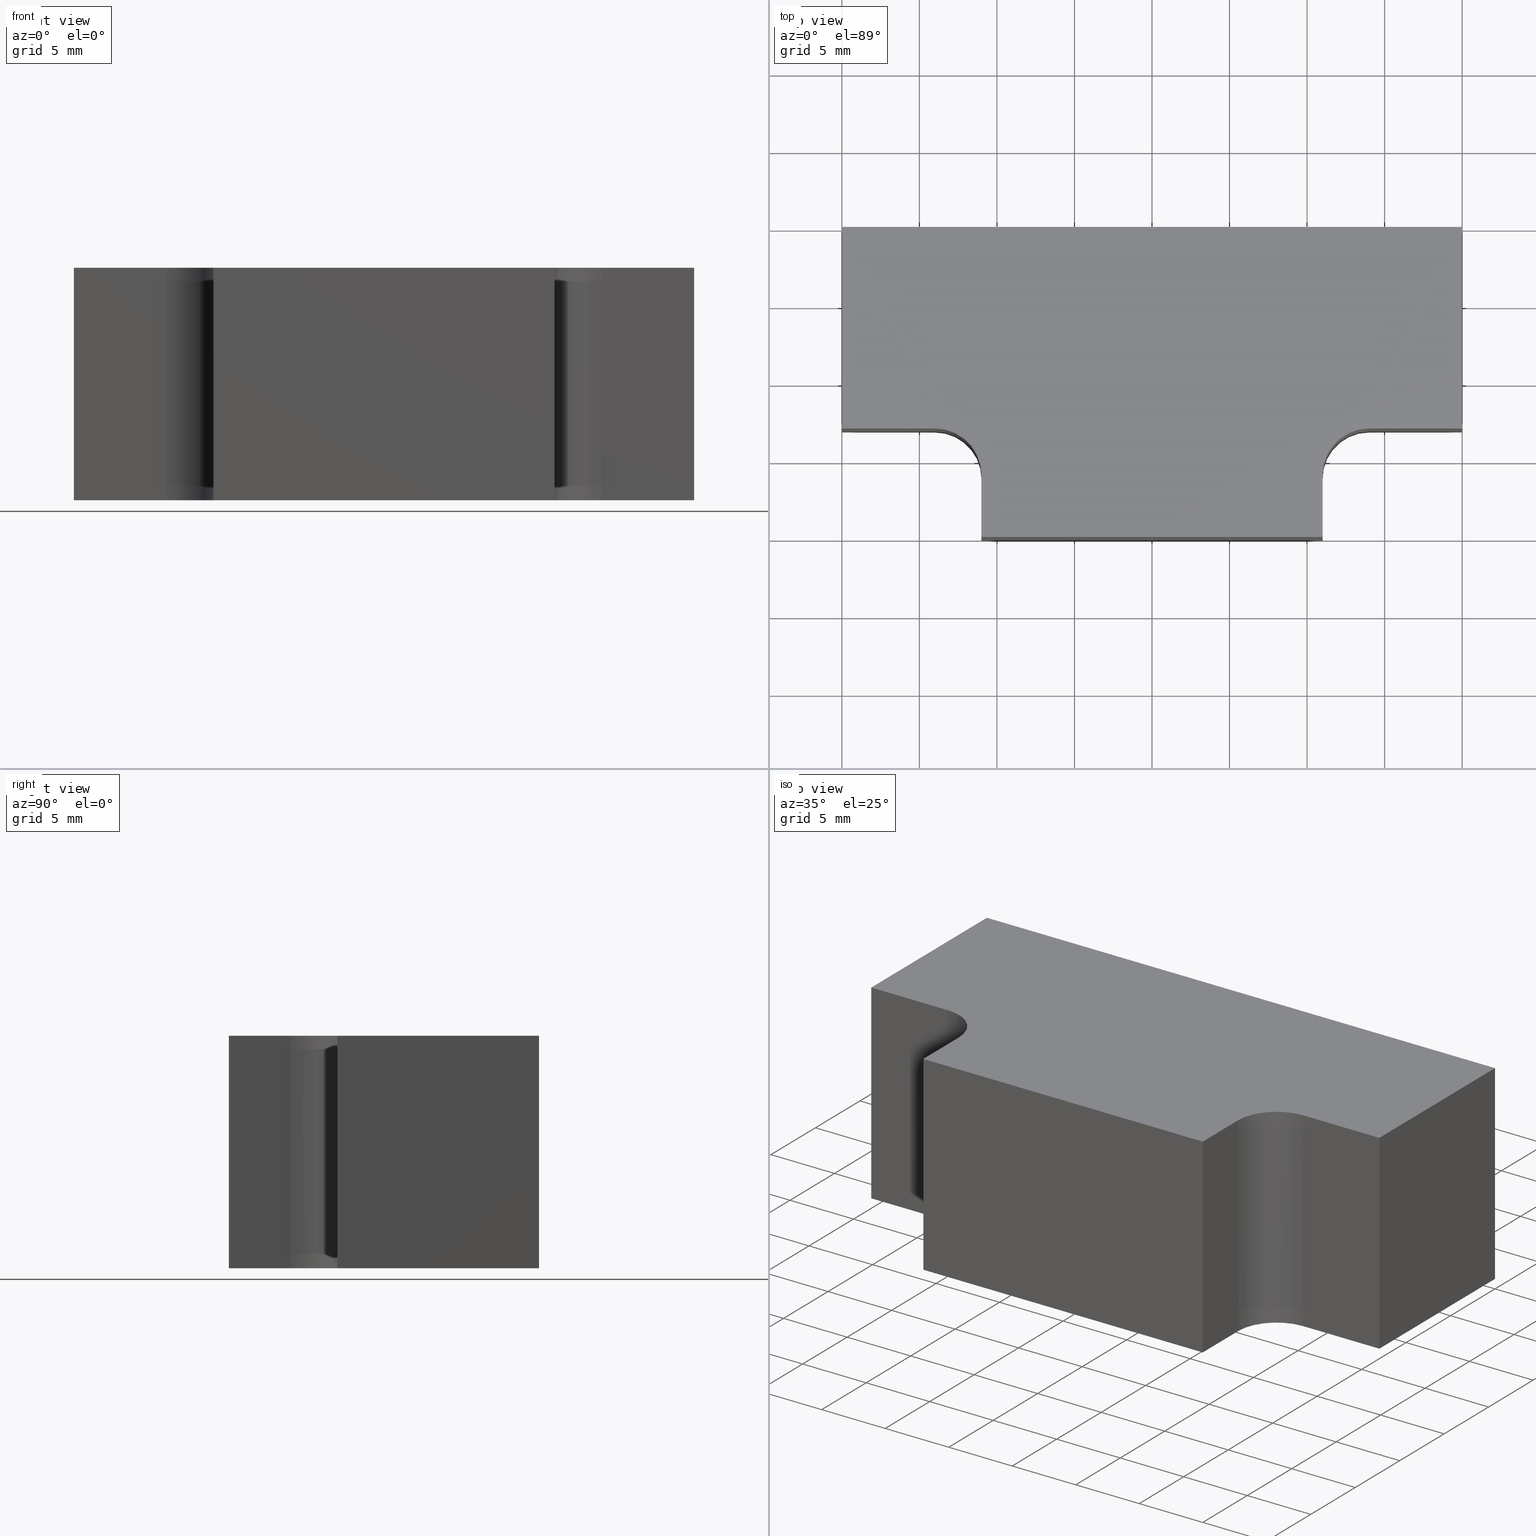
[diagram: canonical four-view strip — front | top / right | iso, engineering-drawing reading convention]
A machine part, canonical four-view strip (front | top / right | iso — engineering-drawing reading convention). The complete STEP part file that produces these views, byte-faithful:
ISO-10303-21;
HEADER;
/* Generated by software containing ST-Developer
 * from STEP Tools, Inc. (www.steptools.com) 
 */

FILE_DESCRIPTION(
/* description */ (''),
/* implementation_level */ '2;1');

FILE_NAME(
/* name */ 'E_3_01_04_15_00_WKZ-0064.stp',
/* time_stamp */ '2025-11-24T11:06:37+01:00',
/* author */ ('d.fischer'),
/* organization */ (''),
/* preprocessor_version */ 'ST-DEVELOPER v20',
/* originating_system */ 'Autodesk Inventor 2025',
/* authorisation */ '');

FILE_SCHEMA (('AUTOMOTIVE_DESIGN { 1 0 10303 214 3 1 1 }'));
ENDSEC;

DATA;
#10=MECHANICAL_DESIGN_GEOMETRIC_PRESENTATION_REPRESENTATION('',(#13),#394);
#11=SHAPE_REPRESENTATION_RELATIONSHIP('SRR','None',#401,#12);
#12=ADVANCED_BREP_SHAPE_REPRESENTATION('',(#14),#393);
#13=STYLED_ITEM('',(#410),#14);
#14=MANIFOLD_SOLID_BREP('Volumenk\X\F6rper1',#229);
#15=CYLINDRICAL_SURFACE('',#257,3.);
#16=CYLINDRICAL_SURFACE('',#264,3.);
#17=FACE_OUTER_BOUND('',#29,.T.);
#18=FACE_OUTER_BOUND('',#30,.T.);
#19=FACE_OUTER_BOUND('',#31,.T.);
#20=FACE_OUTER_BOUND('',#32,.T.);
#21=FACE_OUTER_BOUND('',#33,.T.);
#22=FACE_OUTER_BOUND('',#34,.T.);
#23=FACE_OUTER_BOUND('',#35,.T.);
#24=FACE_OUTER_BOUND('',#36,.T.);
#25=FACE_OUTER_BOUND('',#37,.T.);
#26=FACE_OUTER_BOUND('',#38,.T.);
#27=FACE_OUTER_BOUND('',#39,.T.);
#28=FACE_OUTER_BOUND('',#40,.T.);
#29=EDGE_LOOP('',(#147,#148,#149,#150,#151,#152,#153,#154,#155,#156));
#30=EDGE_LOOP('',(#157,#158,#159,#160));
#31=EDGE_LOOP('',(#161,#162,#163,#164));
#32=EDGE_LOOP('',(#165,#166,#167,#168));
#33=EDGE_LOOP('',(#169,#170,#171,#172));
#34=EDGE_LOOP('',(#173,#174,#175,#176));
#35=EDGE_LOOP('',(#177,#178,#179,#180));
#36=EDGE_LOOP('',(#181,#182,#183,#184));
#37=EDGE_LOOP('',(#185,#186,#187,#188));
#38=EDGE_LOOP('',(#189,#190,#191,#192));
#39=EDGE_LOOP('',(#193,#194,#195,#196));
#40=EDGE_LOOP('',(#197,#198,#199,#200,#201,#202,#203,#204,#205,#206));
#41=LINE('',#334,#67);
#42=LINE('',#336,#68);
#43=LINE('',#338,#69);
#44=LINE('',#342,#70);
#45=LINE('',#344,#71);
#46=LINE('',#346,#72);
#47=LINE('',#348,#73);
#48=LINE('',#349,#74);
#49=LINE('',#353,#75);
#50=LINE('',#354,#76);
#51=LINE('',#355,#77);
#52=LINE('',#358,#78);
#53=LINE('',#359,#79);
#54=LINE('',#363,#80);
#55=LINE('',#366,#81);
#56=LINE('',#367,#82);
#57=LINE('',#370,#83);
#58=LINE('',#371,#84);
#59=LINE('',#374,#85);
#60=LINE('',#375,#86);
#61=LINE('',#378,#87);
#62=LINE('',#379,#88);
#63=LINE('',#382,#89);
#64=LINE('',#383,#90);
#65=LINE('',#387,#91);
#66=LINE('',#389,#92);
#67=VECTOR('',#274,10.);
#68=VECTOR('',#275,10.);
#69=VECTOR('',#276,10.);
#70=VECTOR('',#279,10.);
#71=VECTOR('',#280,10.);
#72=VECTOR('',#281,10.);
#73=VECTOR('',#282,10.);
#74=VECTOR('',#283,10.);
#75=VECTOR('',#286,10.);
#76=VECTOR('',#287,10.);
#77=VECTOR('',#288,10.);
#78=VECTOR('',#291,10.);
#79=VECTOR('',#292,10.);
#80=VECTOR('',#297,10.);
#81=VECTOR('',#300,10.);
#82=VECTOR('',#301,10.);
#83=VECTOR('',#304,10.);
#84=VECTOR('',#305,10.);
#85=VECTOR('',#308,10.);
#86=VECTOR('',#309,10.);
#87=VECTOR('',#312,10.);
#88=VECTOR('',#313,10.);
#89=VECTOR('',#316,10.);
#90=VECTOR('',#317,10.);
#91=VECTOR('',#322,10.);
#92=VECTOR('',#325,10.);
#93=CIRCLE('',#253,3.);
#94=CIRCLE('',#254,3.);
#95=CIRCLE('',#258,3.);
#96=CIRCLE('',#265,3.);
#97=VERTEX_POINT('',#330);
#98=VERTEX_POINT('',#331);
#99=VERTEX_POINT('',#333);
#100=VERTEX_POINT('',#335);
#101=VERTEX_POINT('',#337);
#102=VERTEX_POINT('',#339);
#103=VERTEX_POINT('',#341);
#104=VERTEX_POINT('',#343);
#105=VERTEX_POINT('',#345);
#106=VERTEX_POINT('',#347);
#107=VERTEX_POINT('',#351);
#108=VERTEX_POINT('',#352);
#109=VERTEX_POINT('',#357);
#110=VERTEX_POINT('',#361);
#111=VERTEX_POINT('',#365);
#112=VERTEX_POINT('',#369);
#113=VERTEX_POINT('',#373);
#114=VERTEX_POINT('',#377);
#115=VERTEX_POINT('',#381);
#116=VERTEX_POINT('',#385);
#117=EDGE_CURVE('',#97,#98,#93,.T.);
#118=EDGE_CURVE('',#99,#97,#41,.T.);
#119=EDGE_CURVE('',#100,#99,#42,.T.);
#120=EDGE_CURVE('',#101,#100,#43,.T.);
#121=EDGE_CURVE('',#102,#101,#94,.T.);
#122=EDGE_CURVE('',#103,#102,#44,.T.);
#123=EDGE_CURVE('',#104,#103,#45,.T.);
#124=EDGE_CURVE('',#105,#104,#46,.T.);
#125=EDGE_CURVE('',#106,#105,#47,.T.);
#126=EDGE_CURVE('',#98,#106,#48,.T.);
#127=EDGE_CURVE('',#107,#108,#49,.T.);
#128=EDGE_CURVE('',#100,#108,#50,.T.);
#129=EDGE_CURVE('',#107,#99,#51,.T.);
#130=EDGE_CURVE('',#108,#109,#52,.T.);
#131=EDGE_CURVE('',#101,#109,#53,.T.);
#132=EDGE_CURVE('',#109,#110,#95,.T.);
#133=EDGE_CURVE('',#102,#110,#54,.T.);
#134=EDGE_CURVE('',#110,#111,#55,.T.);
#135=EDGE_CURVE('',#103,#111,#56,.T.);
#136=EDGE_CURVE('',#111,#112,#57,.T.);
#137=EDGE_CURVE('',#104,#112,#58,.T.);
#138=EDGE_CURVE('',#112,#113,#59,.T.);
#139=EDGE_CURVE('',#105,#113,#60,.T.);
#140=EDGE_CURVE('',#113,#114,#61,.T.);
#141=EDGE_CURVE('',#106,#114,#62,.T.);
#142=EDGE_CURVE('',#114,#115,#63,.T.);
#143=EDGE_CURVE('',#98,#115,#64,.T.);
#144=EDGE_CURVE('',#115,#116,#96,.T.);
#145=EDGE_CURVE('',#97,#116,#65,.T.);
#146=EDGE_CURVE('',#116,#107,#66,.T.);
#147=ORIENTED_EDGE('',*,*,#117,.F.);
#148=ORIENTED_EDGE('',*,*,#118,.F.);
#149=ORIENTED_EDGE('',*,*,#119,.F.);
#150=ORIENTED_EDGE('',*,*,#120,.F.);
#151=ORIENTED_EDGE('',*,*,#121,.F.);
#152=ORIENTED_EDGE('',*,*,#122,.F.);
#153=ORIENTED_EDGE('',*,*,#123,.F.);
#154=ORIENTED_EDGE('',*,*,#124,.F.);
#155=ORIENTED_EDGE('',*,*,#125,.F.);
#156=ORIENTED_EDGE('',*,*,#126,.F.);
#157=ORIENTED_EDGE('',*,*,#127,.T.);
#158=ORIENTED_EDGE('',*,*,#128,.F.);
#159=ORIENTED_EDGE('',*,*,#119,.T.);
#160=ORIENTED_EDGE('',*,*,#129,.F.);
#161=ORIENTED_EDGE('',*,*,#130,.T.);
#162=ORIENTED_EDGE('',*,*,#131,.F.);
#163=ORIENTED_EDGE('',*,*,#120,.T.);
#164=ORIENTED_EDGE('',*,*,#128,.T.);
#165=ORIENTED_EDGE('',*,*,#132,.T.);
#166=ORIENTED_EDGE('',*,*,#133,.F.);
#167=ORIENTED_EDGE('',*,*,#121,.T.);
#168=ORIENTED_EDGE('',*,*,#131,.T.);
#169=ORIENTED_EDGE('',*,*,#134,.T.);
#170=ORIENTED_EDGE('',*,*,#135,.F.);
#171=ORIENTED_EDGE('',*,*,#122,.T.);
#172=ORIENTED_EDGE('',*,*,#133,.T.);
#173=ORIENTED_EDGE('',*,*,#136,.T.);
#174=ORIENTED_EDGE('',*,*,#137,.F.);
#175=ORIENTED_EDGE('',*,*,#123,.T.);
#176=ORIENTED_EDGE('',*,*,#135,.T.);
#177=ORIENTED_EDGE('',*,*,#138,.T.);
#178=ORIENTED_EDGE('',*,*,#139,.F.);
#179=ORIENTED_EDGE('',*,*,#124,.T.);
#180=ORIENTED_EDGE('',*,*,#137,.T.);
#181=ORIENTED_EDGE('',*,*,#140,.T.);
#182=ORIENTED_EDGE('',*,*,#141,.F.);
#183=ORIENTED_EDGE('',*,*,#125,.T.);
#184=ORIENTED_EDGE('',*,*,#139,.T.);
#185=ORIENTED_EDGE('',*,*,#142,.T.);
#186=ORIENTED_EDGE('',*,*,#143,.F.);
#187=ORIENTED_EDGE('',*,*,#126,.T.);
#188=ORIENTED_EDGE('',*,*,#141,.T.);
#189=ORIENTED_EDGE('',*,*,#144,.T.);
#190=ORIENTED_EDGE('',*,*,#145,.F.);
#191=ORIENTED_EDGE('',*,*,#117,.T.);
#192=ORIENTED_EDGE('',*,*,#143,.T.);
#193=ORIENTED_EDGE('',*,*,#146,.T.);
#194=ORIENTED_EDGE('',*,*,#129,.T.);
#195=ORIENTED_EDGE('',*,*,#118,.T.);
#196=ORIENTED_EDGE('',*,*,#145,.T.);
#197=ORIENTED_EDGE('',*,*,#127,.F.);
#198=ORIENTED_EDGE('',*,*,#146,.F.);
#199=ORIENTED_EDGE('',*,*,#144,.F.);
#200=ORIENTED_EDGE('',*,*,#142,.F.);
#201=ORIENTED_EDGE('',*,*,#140,.F.);
#202=ORIENTED_EDGE('',*,*,#138,.F.);
#203=ORIENTED_EDGE('',*,*,#136,.F.);
#204=ORIENTED_EDGE('',*,*,#134,.F.);
#205=ORIENTED_EDGE('',*,*,#132,.F.);
#206=ORIENTED_EDGE('',*,*,#130,.F.);
#207=PLANE('',#252);
#208=PLANE('',#255);
#209=PLANE('',#256);
#210=PLANE('',#259);
#211=PLANE('',#260);
#212=PLANE('',#261);
#213=PLANE('',#262);
#214=PLANE('',#263);
#215=PLANE('',#266);
#216=PLANE('',#267);
#217=ADVANCED_FACE('',(#17),#207,.F.);
#218=ADVANCED_FACE('',(#18),#208,.T.);
#219=ADVANCED_FACE('',(#19),#209,.T.);
#220=ADVANCED_FACE('',(#20),#15,.F.);
#221=ADVANCED_FACE('',(#21),#210,.T.);
#222=ADVANCED_FACE('',(#22),#211,.T.);
#223=ADVANCED_FACE('',(#23),#212,.T.);
#224=ADVANCED_FACE('',(#24),#213,.T.);
#225=ADVANCED_FACE('',(#25),#214,.T.);
#226=ADVANCED_FACE('',(#26),#16,.F.);
#227=ADVANCED_FACE('',(#27),#215,.T.);
#228=ADVANCED_FACE('',(#28),#216,.T.);
#229=CLOSED_SHELL('',(#217,#218,#219,#220,#221,#222,#223,#224,#225,#226,
#227,#228));
#230=DERIVED_UNIT_ELEMENT(#233,1.);
#231=DERIVED_UNIT_ELEMENT(#396,-3.);
#232=DIMENSIONAL_EXPONENTS(0.,1.,0.,0.,0.,0.,0.);
#233=(
CONVERSION_BASED_UNIT('gram',#235)
MASS_UNIT()
NAMED_UNIT(#232)
);
#234=(
MASS_UNIT()
NAMED_UNIT(*)
SI_UNIT(.KILO.,.GRAM.)
);
#235=MASS_MEASURE_WITH_UNIT(MASS_MEASURE(0.001),#234);
#236=DERIVED_UNIT((#230,#231));
#237=MEASURE_REPRESENTATION_ITEM('density measure',
POSITIVE_RATIO_MEASURE(8.03),#236);
#238=PROPERTY_DEFINITION_REPRESENTATION(#243,#240);
#239=PROPERTY_DEFINITION_REPRESENTATION(#244,#241);
#240=REPRESENTATION('material name',(#242),#393);
#241=REPRESENTATION('density',(#237),#393);
#242=DESCRIPTIVE_REPRESENTATION_ITEM('1.4301','1.4301');
#243=PROPERTY_DEFINITION('material property','material name',#403);
#244=PROPERTY_DEFINITION('material property','density of part',#403);
#245=DATE_TIME_ROLE('creation_date');
#246=APPLIED_DATE_AND_TIME_ASSIGNMENT(#247,#245,(#403));
#247=DATE_AND_TIME(#248,#249);
#248=CALENDAR_DATE(2011,20,10);
#249=LOCAL_TIME(0,0,0.,#250);
#250=COORDINATED_UNIVERSAL_TIME_OFFSET(0,0,.BEHIND.);
#251=AXIS2_PLACEMENT_3D('',#328,#268,#269);
#252=AXIS2_PLACEMENT_3D('',#329,#270,#271);
#253=AXIS2_PLACEMENT_3D('',#332,#272,#273);
#254=AXIS2_PLACEMENT_3D('',#340,#277,#278);
#255=AXIS2_PLACEMENT_3D('',#350,#284,#285);
#256=AXIS2_PLACEMENT_3D('',#356,#289,#290);
#257=AXIS2_PLACEMENT_3D('',#360,#293,#294);
#258=AXIS2_PLACEMENT_3D('',#362,#295,#296);
#259=AXIS2_PLACEMENT_3D('',#364,#298,#299);
#260=AXIS2_PLACEMENT_3D('',#368,#302,#303);
#261=AXIS2_PLACEMENT_3D('',#372,#306,#307);
#262=AXIS2_PLACEMENT_3D('',#376,#310,#311);
#263=AXIS2_PLACEMENT_3D('',#380,#314,#315);
#264=AXIS2_PLACEMENT_3D('',#384,#318,#319);
#265=AXIS2_PLACEMENT_3D('',#386,#320,#321);
#266=AXIS2_PLACEMENT_3D('',#388,#323,#324);
#267=AXIS2_PLACEMENT_3D('',#390,#326,#327);
#268=DIRECTION('axis',(0.,0.,1.));
#269=DIRECTION('refdir',(1.,0.,0.));
#270=DIRECTION('center_axis',(0.,0.,1.));
#271=DIRECTION('ref_axis',(1.,0.,0.));
#272=DIRECTION('center_axis',(0.,0.,-1.));
#273=DIRECTION('ref_axis',(0.,-1.,0.));
#274=DIRECTION('',(-5.55111512312578E-16,1.,0.));
#275=DIRECTION('',(1.,0.,0.));
#276=DIRECTION('',(-5.55111512312578E-16,-1.,0.));
#277=DIRECTION('center_axis',(0.,0.,-1.));
#278=DIRECTION('ref_axis',(-1.,0.,0.));
#279=DIRECTION('',(1.,-3.70074341541719E-16,0.));
#280=DIRECTION('',(3.41607084500048E-16,-1.,0.));
#281=DIRECTION('',(-1.,0.,0.));
#282=DIRECTION('',(0.,1.,0.));
#283=DIRECTION('',(1.,3.70074341541719E-16,0.));
#284=DIRECTION('center_axis',(0.,-1.,0.));
#285=DIRECTION('ref_axis',(0.,0.,-1.));
#286=DIRECTION('',(-1.,0.,0.));
#287=DIRECTION('',(0.,0.,1.));
#288=DIRECTION('',(0.,0.,-1.));
#289=DIRECTION('center_axis',(-1.,5.55111512312578E-16,0.));
#290=DIRECTION('ref_axis',(0.,0.,1.));
#291=DIRECTION('',(5.55111512312578E-16,1.,0.));
#292=DIRECTION('',(0.,0.,1.));
#293=DIRECTION('center_axis',(0.,0.,1.));
#294=DIRECTION('ref_axis',(-1.,0.,0.));
#295=DIRECTION('center_axis',(0.,0.,1.));
#296=DIRECTION('ref_axis',(-1.,0.,0.));
#297=DIRECTION('',(0.,0.,1.));
#298=DIRECTION('center_axis',(-3.70074341541719E-16,-1.,0.));
#299=DIRECTION('ref_axis',(0.,0.,-1.));
#300=DIRECTION('',(-1.,3.70074341541719E-16,0.));
#301=DIRECTION('',(0.,0.,1.));
#302=DIRECTION('center_axis',(-1.,-3.41607084500048E-16,0.));
#303=DIRECTION('ref_axis',(0.,0.,1.));
#304=DIRECTION('',(-3.41607084500048E-16,1.,0.));
#305=DIRECTION('',(0.,0.,1.));
#306=DIRECTION('center_axis',(0.,1.,0.));
#307=DIRECTION('ref_axis',(0.,0.,1.));
#308=DIRECTION('',(1.,0.,0.));
#309=DIRECTION('',(0.,0.,1.));
#310=DIRECTION('center_axis',(1.,0.,0.));
#311=DIRECTION('ref_axis',(0.,0.,-1.));
#312=DIRECTION('',(0.,-1.,0.));
#313=DIRECTION('',(0.,0.,1.));
#314=DIRECTION('center_axis',(3.70074341541719E-16,-1.,0.));
#315=DIRECTION('ref_axis',(0.,0.,-1.));
#316=DIRECTION('',(-1.,-3.70074341541719E-16,0.));
#317=DIRECTION('',(0.,0.,1.));
#318=DIRECTION('center_axis',(0.,0.,1.));
#319=DIRECTION('ref_axis',(0.,-1.,0.));
#320=DIRECTION('center_axis',(0.,0.,1.));
#321=DIRECTION('ref_axis',(0.,-1.,0.));
#322=DIRECTION('',(0.,0.,1.));
#323=DIRECTION('center_axis',(1.,5.55111512312578E-16,0.));
#324=DIRECTION('ref_axis',(0.,0.,-1.));
#325=DIRECTION('',(5.55111512312578E-16,-1.,0.));
#326=DIRECTION('center_axis',(0.,0.,1.));
#327=DIRECTION('ref_axis',(1.,0.,0.));
#328=CARTESIAN_POINT('',(0.,0.,0.));
#329=CARTESIAN_POINT('Origin',(-4.85722573273506E-16,-8.87530972879931,
-7.5));
#330=CARTESIAN_POINT('',(11.,-16.,-7.5));
#331=CARTESIAN_POINT('',(14.,-13.,-7.5));
#332=CARTESIAN_POINT('Origin',(14.,-16.,-7.5));
#333=CARTESIAN_POINT('',(11.,-20.,-7.5));
#334=CARTESIAN_POINT('',(11.,-20.,-7.5));
#335=CARTESIAN_POINT('',(-11.,-20.,-7.5));
#336=CARTESIAN_POINT('',(-11.,-20.,-7.5));
#337=CARTESIAN_POINT('',(-11.,-16.,-7.5));
#338=CARTESIAN_POINT('',(-11.,-16.,-7.5));
#339=CARTESIAN_POINT('',(-14.,-13.,-7.5));
#340=CARTESIAN_POINT('Origin',(-14.,-16.,-7.5));
#341=CARTESIAN_POINT('',(-20.,-13.,-7.5));
#342=CARTESIAN_POINT('',(-20.,-13.,-7.5));
#343=CARTESIAN_POINT('',(-20.,0.,-7.5));
#344=CARTESIAN_POINT('',(-20.,0.,-7.5));
#345=CARTESIAN_POINT('',(20.,0.,-7.5));
#346=CARTESIAN_POINT('',(20.,0.,-7.5));
#347=CARTESIAN_POINT('',(20.,-13.,-7.5));
#348=CARTESIAN_POINT('',(20.,-13.,-7.5));
#349=CARTESIAN_POINT('',(14.,-13.,-7.5));
#350=CARTESIAN_POINT('Origin',(11.,-20.,0.));
#351=CARTESIAN_POINT('',(11.,-20.,7.5));
#352=CARTESIAN_POINT('',(-11.,-20.,7.5));
#353=CARTESIAN_POINT('',(-11.,-20.,7.5));
#354=CARTESIAN_POINT('',(-11.,-20.,0.));
#355=CARTESIAN_POINT('',(11.,-20.,0.));
#356=CARTESIAN_POINT('Origin',(-11.,-20.,0.));
#357=CARTESIAN_POINT('',(-11.,-16.,7.5));
#358=CARTESIAN_POINT('',(-11.,-16.,7.5));
#359=CARTESIAN_POINT('',(-11.,-16.,0.));
#360=CARTESIAN_POINT('Origin',(-14.,-16.,0.));
#361=CARTESIAN_POINT('',(-14.,-13.,7.5));
#362=CARTESIAN_POINT('Origin',(-14.,-16.,7.5));
#363=CARTESIAN_POINT('',(-14.,-13.,0.));
#364=CARTESIAN_POINT('Origin',(-14.,-13.,0.));
#365=CARTESIAN_POINT('',(-20.,-13.,7.5));
#366=CARTESIAN_POINT('',(-20.,-13.,7.5));
#367=CARTESIAN_POINT('',(-20.,-13.,0.));
#368=CARTESIAN_POINT('Origin',(-20.,-13.,0.));
#369=CARTESIAN_POINT('',(-20.,0.,7.5));
#370=CARTESIAN_POINT('',(-20.,0.,7.5));
#371=CARTESIAN_POINT('',(-20.,0.,0.));
#372=CARTESIAN_POINT('Origin',(-20.,0.,0.));
#373=CARTESIAN_POINT('',(20.,0.,7.5));
#374=CARTESIAN_POINT('',(20.,0.,7.5));
#375=CARTESIAN_POINT('',(20.,0.,0.));
#376=CARTESIAN_POINT('Origin',(20.,0.,0.));
#377=CARTESIAN_POINT('',(20.,-13.,7.5));
#378=CARTESIAN_POINT('',(20.,-13.,7.5));
#379=CARTESIAN_POINT('',(20.,-13.,0.));
#380=CARTESIAN_POINT('Origin',(20.,-13.,0.));
#381=CARTESIAN_POINT('',(14.,-13.,7.5));
#382=CARTESIAN_POINT('',(14.,-13.,7.5));
#383=CARTESIAN_POINT('',(14.,-13.,0.));
#384=CARTESIAN_POINT('Origin',(14.,-16.,0.));
#385=CARTESIAN_POINT('',(11.,-16.,7.5));
#386=CARTESIAN_POINT('Origin',(14.,-16.,7.5));
#387=CARTESIAN_POINT('',(11.,-16.,0.));
#388=CARTESIAN_POINT('Origin',(11.,-16.,0.));
#389=CARTESIAN_POINT('',(11.,-20.,7.5));
#390=CARTESIAN_POINT('Origin',(-9.47097041733638E-17,-8.87530972879931,
7.5));
#391=UNCERTAINTY_MEASURE_WITH_UNIT(LENGTH_MEASURE(0.01),#395,
'DISTANCE_ACCURACY_VALUE',
'Maximum model space distance between geometric entities at asserted c
onnectivities');
#392=UNCERTAINTY_MEASURE_WITH_UNIT(LENGTH_MEASURE(0.01),#395,
'DISTANCE_ACCURACY_VALUE',
'Maximum model space distance between geometric entities at asserted c
onnectivities');
#393=(
GEOMETRIC_REPRESENTATION_CONTEXT(3)
GLOBAL_UNCERTAINTY_ASSIGNED_CONTEXT((#391))
GLOBAL_UNIT_ASSIGNED_CONTEXT((#395,#397,#398))
REPRESENTATION_CONTEXT('','3D')
);
#394=(
GEOMETRIC_REPRESENTATION_CONTEXT(3)
GLOBAL_UNCERTAINTY_ASSIGNED_CONTEXT((#392))
GLOBAL_UNIT_ASSIGNED_CONTEXT((#395,#397,#398))
REPRESENTATION_CONTEXT('','3D')
);
#395=(
LENGTH_UNIT()
NAMED_UNIT(*)
SI_UNIT(.MILLI.,.METRE.)
);
#396=(
LENGTH_UNIT()
NAMED_UNIT(*)
SI_UNIT(.CENTI.,.METRE.)
);
#397=(
NAMED_UNIT(*)
PLANE_ANGLE_UNIT()
SI_UNIT($,.RADIAN.)
);
#398=(
NAMED_UNIT(*)
SI_UNIT($,.STERADIAN.)
SOLID_ANGLE_UNIT()
);
#399=SHAPE_DEFINITION_REPRESENTATION(#400,#401);
#400=PRODUCT_DEFINITION_SHAPE('',$,#403);
#401=SHAPE_REPRESENTATION('',(#251),#393);
#402=PRODUCT_DEFINITION_CONTEXT('part definition',#407,'design');
#403=PRODUCT_DEFINITION('WKZ-0064','E_3_01_04_15_00_WKZ-0064',#404,#402);
#404=PRODUCT_DEFINITION_FORMATION('',$,#409);
#405=PRODUCT_RELATED_PRODUCT_CATEGORY('E_3_01_04_15_00_WKZ-0064',
'E_3_01_04_15_00_WKZ-0064',(#409));
#406=APPLICATION_PROTOCOL_DEFINITION('international standard',
'automotive_design',2009,#407);
#407=APPLICATION_CONTEXT(
'Core Data for Automotive Mechanical Design Process');
#408=PRODUCT_CONTEXT('part definition',#407,'mechanical');
#409=PRODUCT('WKZ-0064','E_3_01_04_15_00_WKZ-0064',$,(#408));
#410=PRESENTATION_STYLE_ASSIGNMENT((#411));
#411=SURFACE_STYLE_USAGE(.BOTH.,#414);
#412=SURFACE_STYLE_RENDERING_WITH_PROPERTIES($,#418,(#413));
#413=SURFACE_STYLE_TRANSPARENT(0.);
#414=SURFACE_SIDE_STYLE('',(#415,#412));
#415=SURFACE_STYLE_FILL_AREA(#416);
#416=FILL_AREA_STYLE('',(#417));
#417=FILL_AREA_STYLE_COLOUR('',#418);
#418=COLOUR_RGB('',0.92156862745098,0.92156862745098,0.92156862745098);
ENDSEC;
END-ISO-10303-21;
